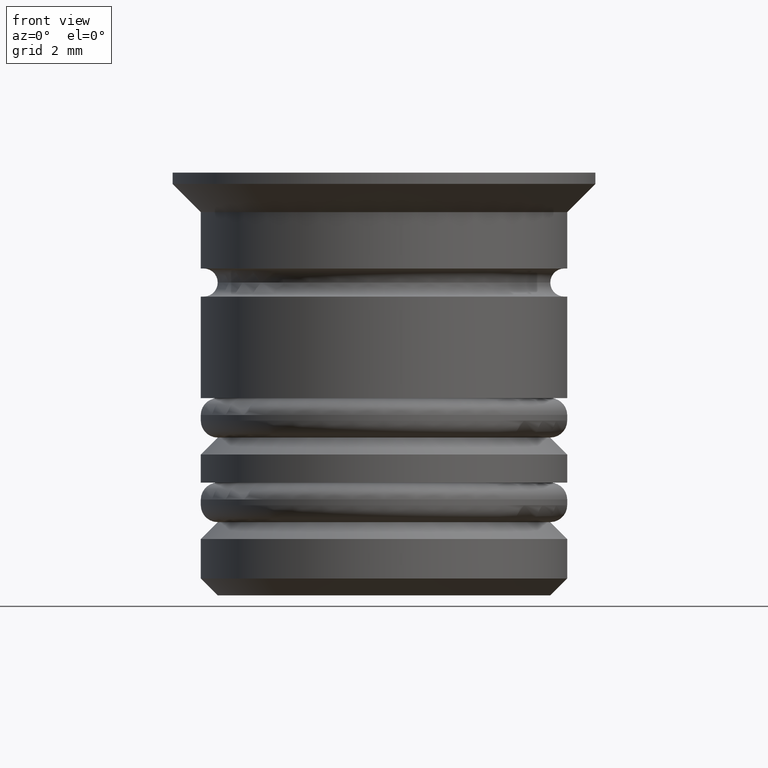
[diagram: clean part render]
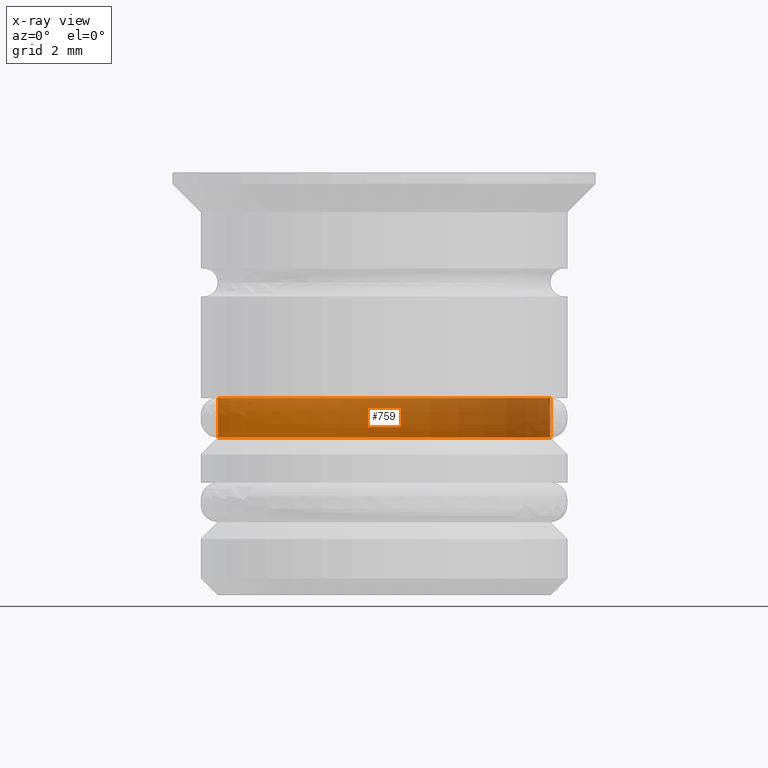
[diagram: x-ray — body ghosted, one internal face saturated and labeled with its STEP entity id]
A machine part, front view, then the same camera in x-ray: the body is ghosted and one INTERNAL B-rep face — a face not visible from any outside direction — is saturated and labeled: STEP entity #759.
In plain terms, the highlighted cylindrical surface (partial cylindrical patch) has radius 2.95 mm, axis along (-0, -0, 1).
Its self-contained STEP definition (entity closure, byte-faithful):
#24 = AXIS2_PLACEMENT_3D ( 'NONE', #307, #1731, #1105 ) ;
#48 = ORIENTED_EDGE ( 'NONE', *, *, #230, .F. ) ;
#49 = DIRECTION ( 'NONE',  ( -0.000000000000000000, -0.000000000000000000, 1.000000000000000000 ) ) ;
#70 = CARTESIAN_POINT ( 'NONE',  ( -2.950000000000000178, 3.612708057484692097E-16, -4.700000000000005507 ) ) ;
#147 = VERTEX_POINT ( 'NONE', #70 ) ;
#178 = DIRECTION ( 'NONE',  ( 1.000000000000000000, 0.000000000000000000, 0.000000000000000000 ) ) ;
#193 = DIRECTION ( 'NONE',  ( -0.000000000000000000, -0.000000000000000000, 1.000000000000000000 ) ) ;
#208 = CIRCLE ( 'NONE', #1070, 2.950000000000000178 ) ;
#228 = CARTESIAN_POINT ( 'NONE',  ( -2.950000000000000178, 3.612708057484692097E-16, 0.000000000000000000 ) ) ;
#230 = EDGE_CURVE ( 'NONE', #1566, #1672, #208, .T. ) ;
#259 = LINE ( 'NONE', #228, #1714 ) ;
#307 = CARTESIAN_POINT ( 'NONE',  ( 0.000000000000000000, 0.000000000000000000, -4.700000000000005507 ) ) ;
#344 = CARTESIAN_POINT ( 'NONE',  ( 2.950000000000000178, 0.000000000000000000, 0.000000000000000000 ) ) ;
#400 = DIRECTION ( 'NONE',  ( -0.000000000000000000, -0.000000000000000000, 1.000000000000000000 ) ) ;
#511 = DIRECTION ( 'NONE',  ( 1.000000000000000000, 0.000000000000000000, 0.000000000000000000 ) ) ;
#531 = EDGE_CURVE ( 'NONE', #746, #147, #843, .T. ) ;
#658 = VECTOR ( 'NONE', #193, 1000.000000000000000 ) ;
#746 = VERTEX_POINT ( 'NONE', #1167 ) ;
#759 = ADVANCED_FACE ( 'NONE', ( #1176 ), #926, .T. ) ;
#843 = CIRCLE ( 'NONE', #24, 2.950000000000000178 ) ;
#926 = CYLINDRICAL_SURFACE ( 'NONE', #1240, 2.950000000000000178 ) ;
#974 = CARTESIAN_POINT ( 'NONE',  ( -2.950000000000000178, 3.612708057484692097E-16, -3.999999999999999112 ) ) ;
#1048 = LINE ( 'NONE', #344, #658 ) ;
#1070 = AXIS2_PLACEMENT_3D ( 'NONE', #1484, #400, #511 ) ;
#1105 = DIRECTION ( 'NONE',  ( -1.000000000000000000, 0.000000000000000000, 0.000000000000000000 ) ) ;
#1167 = CARTESIAN_POINT ( 'NONE',  ( 2.950000000000000178, 0.000000000000000000, -4.700000000000005507 ) ) ;
#1176 = FACE_OUTER_BOUND ( 'NONE', #1192, .T. ) ;
#1192 = EDGE_LOOP ( 'NONE', ( #1634, #1739, #48, #1305 ) ) ;
#1240 = AXIS2_PLACEMENT_3D ( 'NONE', #1477, #49, #178 ) ;
#1305 = ORIENTED_EDGE ( 'NONE', *, *, #1645, .F. ) ;
#1367 = DIRECTION ( 'NONE',  ( -0.000000000000000000, -0.000000000000000000, 1.000000000000000000 ) ) ;
#1477 = CARTESIAN_POINT ( 'NONE',  ( 0.000000000000000000, 0.000000000000000000, 0.000000000000000000 ) ) ;
#1484 = CARTESIAN_POINT ( 'NONE',  ( 0.000000000000000000, 0.000000000000000000, -3.999999999999999112 ) ) ;
#1511 = CARTESIAN_POINT ( 'NONE',  ( 2.950000000000000178, 0.000000000000000000, -3.999999999999999112 ) ) ;
#1566 = VERTEX_POINT ( 'NONE', #1511 ) ;
#1634 = ORIENTED_EDGE ( 'NONE', *, *, #531, .T. ) ;
#1645 = EDGE_CURVE ( 'NONE', #746, #1566, #1048, .T. ) ;
#1672 = VERTEX_POINT ( 'NONE', #974 ) ;
#1714 = VECTOR ( 'NONE', #1367, 1000.000000000000000 ) ;
#1731 = DIRECTION ( 'NONE',  ( -0.000000000000000000, -0.000000000000000000, 1.000000000000000000 ) ) ;
#1739 = ORIENTED_EDGE ( 'NONE', *, *, #1784, .T. ) ;
#1784 = EDGE_CURVE ( 'NONE', #147, #1672, #259, .T. ) ;